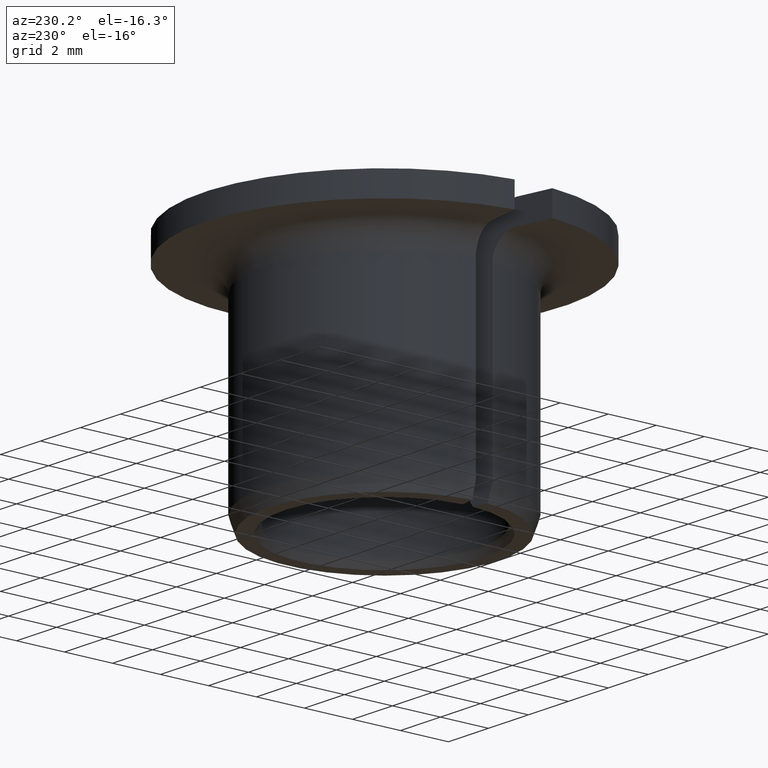
[diagram: clean part render]
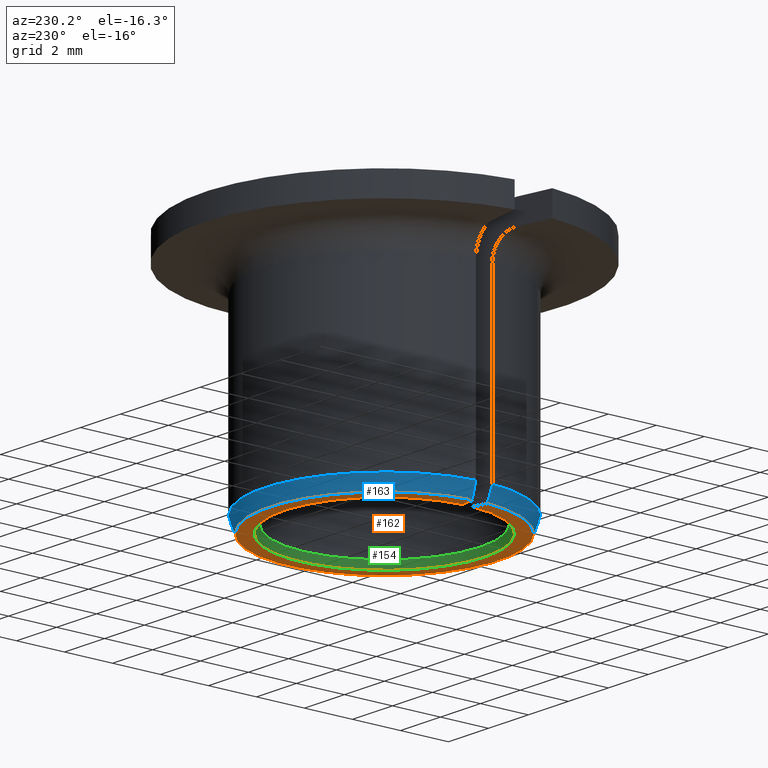
[diagram: same view with three faces highlighted in distinct colors, each labeled with its STEP entity id]
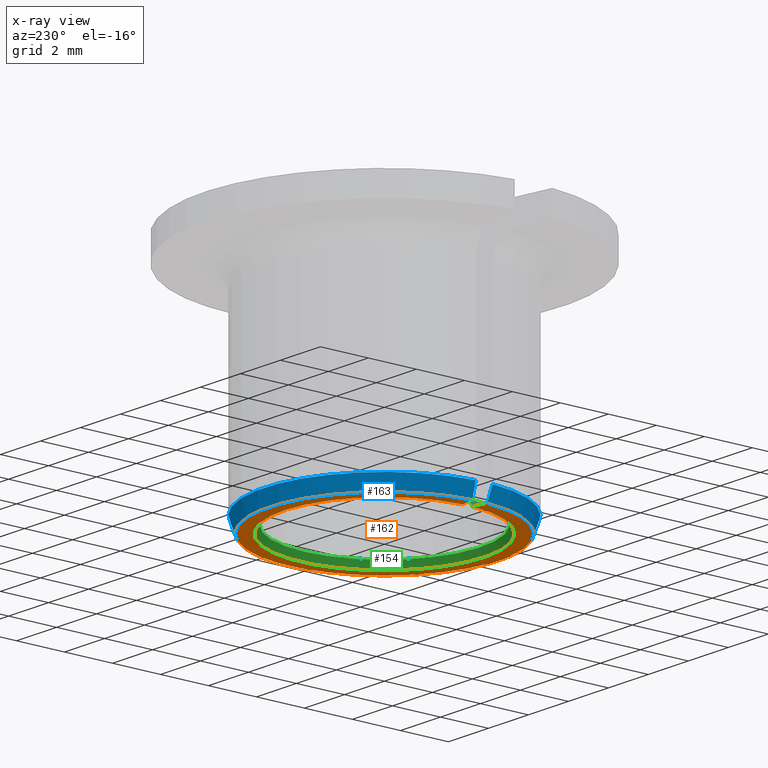
[diagram: x-ray of the same camera — body ghosted, the three highlighted faces saturated]
A machine part, auxiliary view with three faces highlighted in distinct colors.
The next image is the same camera in x-ray (body ghosted, the three faces saturated) — at least one of them is partly hidden behind the body in this view.
Their STEP definitions:

[orange] entity #162 — the highlighted planar face has unit normal (-0, 0, -1).
#162=ADVANCED_FACE('',(#185),#186,.T.);
#185=FACE_OUTER_BOUND('',#210,.T.);
#186=PLANE('',#211);
#210=EDGE_LOOP('',(#285,#286,#287,#288));
#211=AXIS2_PLACEMENT_3D('',#289,#290,#291);
#285=ORIENTED_EDGE('',*,*,#339,.T.);
#286=ORIENTED_EDGE('',*,*,#340,.F.);
#287=ORIENTED_EDGE('',*,*,#322,.F.);
#288=ORIENTED_EDGE('',*,*,#319,.T.);
#289=CARTESIAN_POINT('',(0.00417320508075689,0.0,0.0));
#290=DIRECTION('',(0.0,-6.12323399573677E-017,-1.0));
#291=DIRECTION('',(0.0,1.0,-6.12323399573677E-017));
#319=EDGE_CURVE('',#357,#355,#358,.T.);
#322=EDGE_CURVE('',#357,#362,#363,.T.);
#339=EDGE_CURVE('',#355,#388,#389,.T.);
#340=EDGE_CURVE('',#362,#388,#390,.T.);
#355=VERTEX_POINT('',#431);
#357=VERTEX_POINT('',#436);
#358=LINE('',#437,#438);
#362=VERTEX_POINT('',#446);
#363=CIRCLE('',#447,0.00417320508075689);
#388=VERTEX_POINT('',#502);
#389=CIRCLE('',#503,0.00478161785944028);
#390=LINE('',#504,#505);
#431=CARTESIAN_POINT('',(0.00477140534669062,-0.000312346556392789,6.43083039248804E-019));
#436=CARTESIAN_POINT('',(0.00416811907584122,-0.000205970909751045,6.43083039248804E-019));
#437=CARTESIAN_POINT('',(0.003,0.0,6.43083039248804E-019));
#438=VECTOR('',#514,1.0);
#446=CARTESIAN_POINT('',(0.00416811907584122,0.000205970909751045,6.18242089406486E-019));
#447=AXIS2_PLACEMENT_3D('',#516,#517,#518);
#502=CARTESIAN_POINT('',(0.00477140534669062,0.000312346556392789,-1.91257105255564E-020));
#503=AXIS2_PLACEMENT_3D('',#548,#549,#550);
#504=CARTESIAN_POINT('',(0.003,0.0,6.43083039248804E-019));
#505=VECTOR('',#551,1.0);
#514=DIRECTION('',(0.984807753012208,-0.173648177666931,0.0));
#516=CARTESIAN_POINT('',(0.0,0.0,0.0));
#517=DIRECTION('',(0.0,-6.12323399573677E-017,-1.0));
#518=DIRECTION('',(0.0,1.0,-6.12323399573677E-017));
#548=CARTESIAN_POINT('',(0.0,0.0,0.0));
#549=DIRECTION('',(0.0,-6.12323399573677E-017,-1.0));
#550=DIRECTION('',(0.0,1.0,-6.12323399573677E-017));
#551=DIRECTION('',(0.984807753012208,0.173648177666931,-2.0942693688385E-017));

[blue] entity #163 — the highlighted conical surface has half-angle 20 deg.
#163=ADVANCED_FACE('',(#187),#188,.T.);
#187=FACE_OUTER_BOUND('',#212,.T.);
#188=CONICAL_SURFACE('',#213,0.00478161785944028,0.349065850398864);
#212=EDGE_LOOP('',(#292,#293,#294,#295));
#213=AXIS2_PLACEMENT_3D('',#296,#297,#298);
#292=ORIENTED_EDGE('',*,*,#337,.T.);
#293=ORIENTED_EDGE('',*,*,#341,.T.);
#294=ORIENTED_EDGE('',*,*,#339,.F.);
#295=ORIENTED_EDGE('',*,*,#318,.F.);
#296=CARTESIAN_POINT('',(0.0,0.0,0.0));
#297=DIRECTION('',(-0.0,6.12323399573677E-017,1.0));
#298=DIRECTION('',(0.0,-1.0,6.12323399573677E-017));
#318=EDGE_CURVE('',#353,#355,#356,.T.);
#337=EDGE_CURVE('',#353,#384,#386,.T.);
#339=EDGE_CURVE('',#355,#388,#389,.T.);
#341=EDGE_CURVE('',#384,#388,#391,.T.);
#353=VERTEX_POINT('',#428);
#355=VERTEX_POINT('',#431);
#356=B_SPLINE_CURVE_WITH_KNOTS('',3,(#432,#433,#434,#435),.UNSPECIFIED.,.F.,.F.,(4,4),(2.1297212369688E-007,0.000639148274514943),.UNSPECIFIED.);
#384=VERTEX_POINT('',#496);
#386=CIRCLE('',#499,0.005);
#388=VERTEX_POINT('',#502);
#389=CIRCLE('',#503,0.00478161785944028);
#391=B_SPLINE_CURVE_WITH_KNOTS('',3,(#506,#507,#508,#509),.UNSPECIFIED.,.F.,.F.,(4,4),(2.12972123696982E-007,0.000639148274514943),.UNSPECIFIED.);
#428=CARTESIAN_POINT('',(0.00498770087899306,-0.000350485294544407,0.0006));
#431=CARTESIAN_POINT('',(0.00477140534669062,-0.000312346556392789,6.43083039248804E-019));
#432=CARTESIAN_POINT('',(0.00498770087899306,-0.000350485294544409,0.000600000000000001));
#433=CARTESIAN_POINT('',(0.00491561830649228,-0.000337775192173647,0.000399994076477626));
#434=CARTESIAN_POINT('',(0.00484352053067909,-0.000325062409048712,0.000199993801739418));
#435=CARTESIAN_POINT('',(0.00477140534669062,-0.000312346556392789,1.3356719611959E-018));
#496=CARTESIAN_POINT('',(0.00498770087899306,0.000350485294544408,0.0006));
#499=AXIS2_PLACEMENT_3D('',#544,#545,#546);
#502=CARTESIAN_POINT('',(0.00477140534669062,0.000312346556392789,-1.91257105255564E-020));
#503=AXIS2_PLACEMENT_3D('',#548,#549,#550);
#506=CARTESIAN_POINT('',(0.00498770087899306,0.000350485294544409,0.000600000000000001));
#507=CARTESIAN_POINT('',(0.00491561830649228,0.000337775192173647,0.000399994076477626));
#508=CARTESIAN_POINT('',(0.00484352053067909,0.000325062409048712,0.000199993801739417));
#509=CARTESIAN_POINT('',(0.00477140534669062,0.000312346556392789,7.72857145306137E-019));
#544=CARTESIAN_POINT('',(0.0,0.0,0.0006));
#545=DIRECTION('',(0.0,-6.12323399573677E-017,-1.0));
#546=DIRECTION('',(0.0,1.0,-6.12323399573677E-017));
#548=CARTESIAN_POINT('',(0.0,0.0,0.0));
#549=DIRECTION('',(0.0,-6.12323399573677E-017,-1.0));
#550=DIRECTION('',(0.0,1.0,-6.12323399573677E-017));

[green] entity #154 — the highlighted conical surface has half-angle 30 deg.
#154=ADVANCED_FACE('',(#169),#170,.F.);
#169=FACE_OUTER_BOUND('',#194,.T.);
#170=CONICAL_SURFACE('',#195,0.004,0.523598775598298);
#194=EDGE_LOOP('',(#229,#230,#231,#232));
#195=AXIS2_PLACEMENT_3D('',#233,#234,#235);
#229=ORIENTED_EDGE('',*,*,#322,.T.);
#230=ORIENTED_EDGE('',*,*,#323,.T.);
#231=ORIENTED_EDGE('',*,*,#324,.F.);
#232=ORIENTED_EDGE('',*,*,#320,.F.);
#233=CARTESIAN_POINT('',(0.0,0.0,0.0003));
#234=DIRECTION('',(0.0,-6.12323399573677E-017,-1.0));
#235=DIRECTION('',(0.0,1.0,-6.12323399573677E-017));
#320=EDGE_CURVE('',#357,#359,#360,.T.);
#322=EDGE_CURVE('',#357,#362,#363,.T.);
#323=EDGE_CURVE('',#362,#364,#365,.T.);
#324=EDGE_CURVE('',#359,#364,#366,.T.);
#357=VERTEX_POINT('',#436);
#359=VERTEX_POINT('',#439);
#360=B_SPLINE_CURVE_WITH_KNOTS('',3,(#440,#441,#442,#443),.UNSPECIFIED.,.F.,.F.,(4,4),(2.31396596338608E-007,0.000347356429367464),.UNSPECIFIED.);
#362=VERTEX_POINT('',#446);
#363=CIRCLE('',#447,0.00417320508075689);
#364=VERTEX_POINT('',#448);
#365=B_SPLINE_CURVE_WITH_KNOTS('',3,(#449,#450,#451,#452),.UNSPECIFIED.,.F.,.F.,(4,4),(2.31396596338668E-007,0.000347356429367464),.UNSPECIFIED.);
#366=CIRCLE('',#453,0.004);
#436=CARTESIAN_POINT('',(0.00416811907584122,-0.000205970909751045,6.43083039248804E-019));
#439=CARTESIAN_POINT('',(0.00399614167081564,-0.000175646653172807,0.0003));
#440=CARTESIAN_POINT('',(0.00416811907584122,-0.000205970909751045,-1.54990875806966E-018));
#441=CARTESIAN_POINT('',(0.00411080795546129,-0.000195865412933433,0.000100008676351467));
#442=CARTESIAN_POINT('',(0.00405348279616506,-0.000185757440676097,0.000200009059158184));
#443=CARTESIAN_POINT('',(0.00399614167081564,-0.000175646653172808,0.000299999999999999));
#446=CARTESIAN_POINT('',(0.00416811907584122,0.000205970909751045,6.18242089406486E-019));
#447=AXIS2_PLACEMENT_3D('',#516,#517,#518);
#448=CARTESIAN_POINT('',(0.00399614167081564,0.000175646653172808,0.0003));
#449=CARTESIAN_POINT('',(0.00416811907584122,0.000205970909751045,-1.59016448316443E-018));
#450=CARTESIAN_POINT('',(0.00411080795546129,0.000195865412933433,0.000100008676351467));
#451=CARTESIAN_POINT('',(0.00405348279616506,0.000185757440676097,0.000200009059158184));
#452=CARTESIAN_POINT('',(0.00399614167081564,0.000175646653172808,0.000299999999999999));
#453=AXIS2_PLACEMENT_3D('',#519,#520,#521);
#516=CARTESIAN_POINT('',(0.0,0.0,0.0));
#517=DIRECTION('',(0.0,-6.12323399573677E-017,-1.0));
#518=DIRECTION('',(0.0,1.0,-6.12323399573677E-017));
#519=CARTESIAN_POINT('',(0.0,0.0,0.0003));
#520=DIRECTION('',(0.0,-6.12323399573677E-017,-1.0));
#521=DIRECTION('',(0.0,1.0,-6.12323399573677E-017));